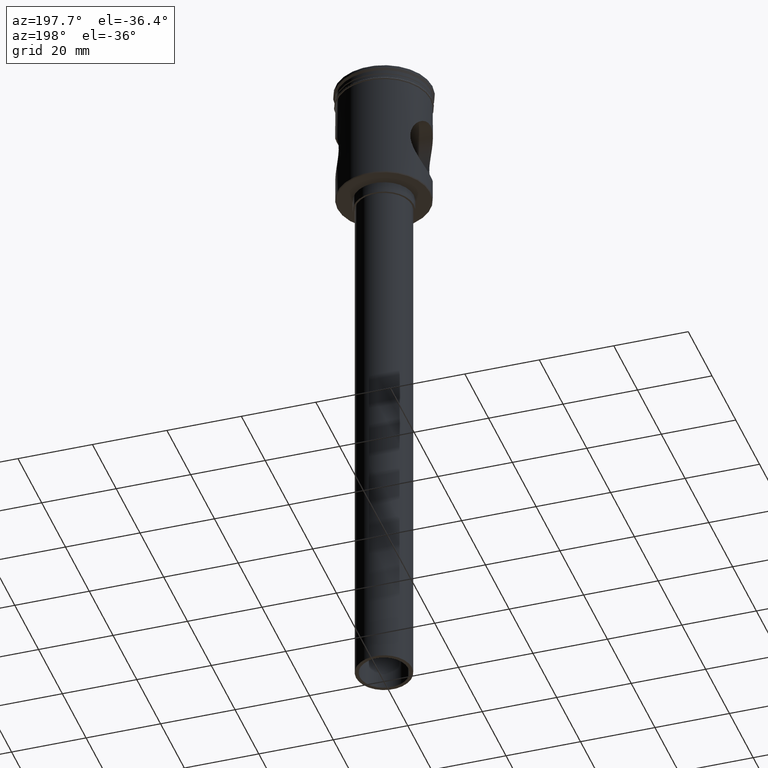
[diagram: clean part render]
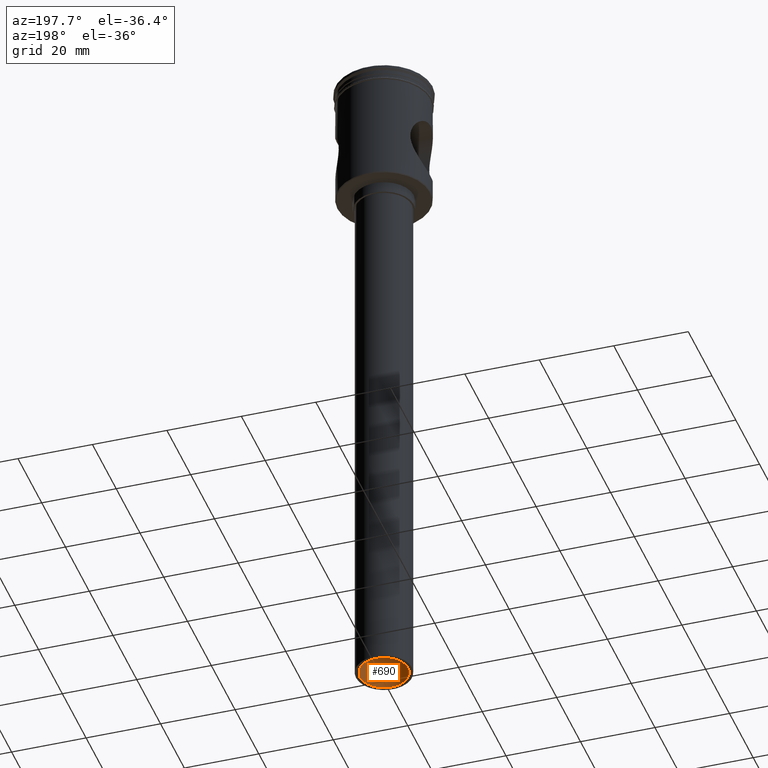
[diagram: same view with one face highlighted and labeled with its STEP entity id]
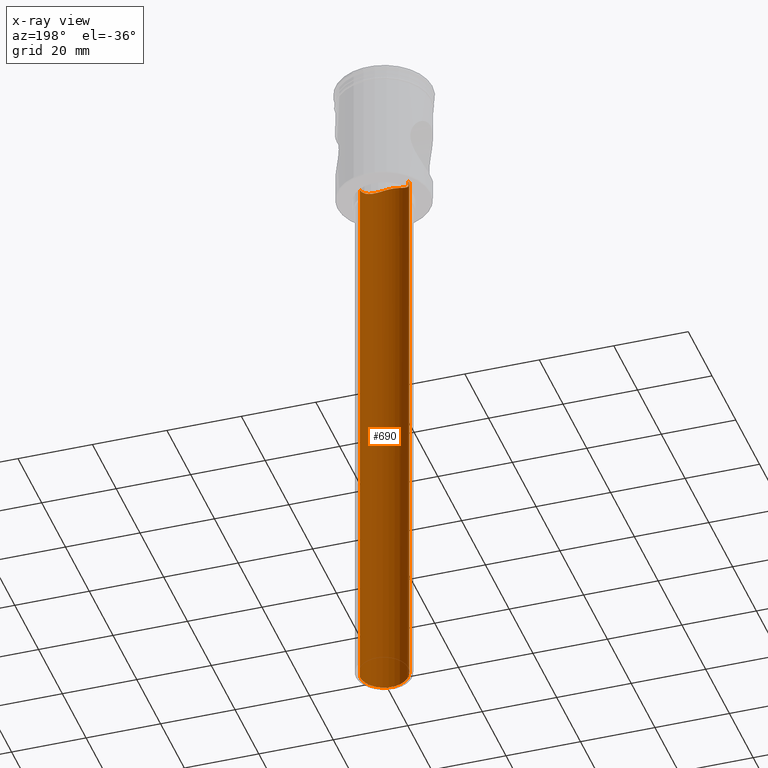
[diagram: x-ray of the same camera — body ghosted, the highlighted face saturated]
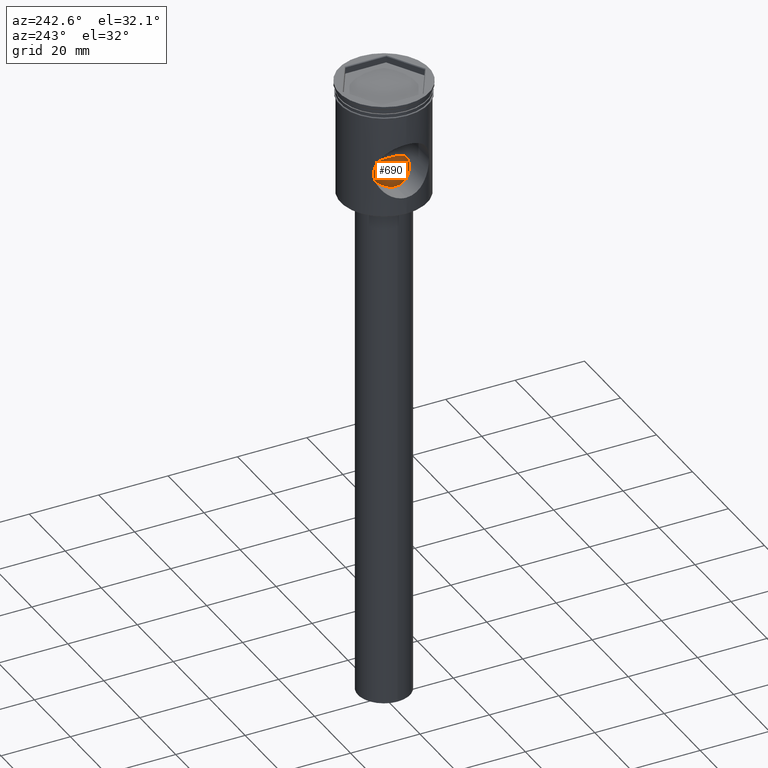
[diagram: same view with one face highlighted and labeled with its STEP entity id]
A machine part, auxiliary view. The second image highlights one B-rep face of the part: STEP entity #690.
The next image is the same camera in x-ray: the body ghosted, the highlighted face saturated — about 0% of this face is hidden behind the body in this view.
A second angle (auxiliary view) of the same face is appended — the face is thin or edge-on in the first view.
In plain terms, the highlighted cylindrical surface (edge-blend (fillet) strip) has radius 6.5 mm, axis along (-0, -0, -1).
Its self-contained STEP definition (entity closure, byte-faithful):
#13 = EDGE_CURVE ( 'NONE', #841, #1405, #1371, .T. ) ;
#32 = DIRECTION ( 'NONE',  ( -1.000000000000000000, 0.000000000000000000, 0.000000000000000000 ) ) ;
#52 = CARTESIAN_POINT ( 'NONE',  ( -6.500000000000000888, 0.000000000000000000, -28.50000000000000355 ) ) ;
#58 = CARTESIAN_POINT ( 'NONE',  ( 6.453317410054072667, -0.8987257197366886885, -28.46192756465547902 ) ) ;
#63 = CARTESIAN_POINT ( 'NONE',  ( -6.045415444438884123, -2.397763870000254816, -28.13506671291826322 ) ) ;
#90 = CARTESIAN_POINT ( 'NONE',  ( 0.2279178920779981743, -6.499906671025888372, -25.16381960342393143 ) ) ;
#131 = AXIS2_PLACEMENT_3D ( 'NONE', #1231, #147, #32 ) ;
#133 = EDGE_CURVE ( 'NONE', #340, #1405, #1203, .T. ) ;
#147 = DIRECTION ( 'NONE',  ( -0.000000000000000000, -0.000000000000000000, -1.000000000000000000 ) ) ;
#179 = ORIENTED_EDGE ( 'NONE', *, *, #228, .T. ) ;
#187 = ORIENTED_EDGE ( 'NONE', *, *, #1068, .T. ) ;
#224 = CARTESIAN_POINT ( 'NONE',  ( 1.756904762588332947, -6.261655111009210906, -25.48015160804801127 ) ) ;
#228 = EDGE_CURVE ( 'NONE', #1127, #340, #962, .T. ) ;
#269 = CARTESIAN_POINT ( 'NONE',  ( -6.122444628364570818, -2.194197262529900438, -28.19627710528614273 ) ) ;
#272 = DIRECTION ( 'NONE',  ( -0.000000000000000000, -0.000000000000000000, -1.000000000000000000 ) ) ;
#320 = CARTESIAN_POINT ( 'NONE',  ( -5.103730894293438958, -4.046605658040481224, -27.41185527253418996 ) ) ;
#340 = VERTEX_POINT ( 'NONE', #627 ) ;
#342 = CARTESIAN_POINT ( 'NONE',  ( -2.170115222478395722, -6.140890886714586827, -25.63309683516175852 ) ) ;
#348 = CARTESIAN_POINT ( 'NONE',  ( 2.359926253138728391, -6.060024045516307467, -25.72409407202624720 ) ) ;
#361 = AXIS2_PLACEMENT_3D ( 'NONE', #484, #951, #1209 ) ;
#362 = CARTESIAN_POINT ( 'NONE',  ( 6.500000000000000888, 7.960204194457796463E-16, 0.001000000000001000089 ) ) ;
#371 = CARTESIAN_POINT ( 'NONE',  ( 3.786615532826517860, -5.286943772991308244, -26.50592529537262720 ) ) ;
#389 = CARTESIAN_POINT ( 'NONE',  ( 5.107185914474898780, -4.041931180501665111, -27.41443527780073097 ) ) ;
#393 = CARTESIAN_POINT ( 'NONE',  ( -6.314744280824636569, -1.556775652073180582, -28.35017581032061429 ) ) ;
#397 = ORIENTED_EDGE ( 'NONE', *, *, #13, .F. ) ;
#439 = CARTESIAN_POINT ( 'NONE',  ( -1.118613416445524367, -6.406746286385391898, -25.29156067469896385 ) ) ;
#450 = CARTESIAN_POINT ( 'NONE',  ( -5.459419164172166994, -3.533838421339083880, -27.67977549627449463 ) ) ;
#469 = CARTESIAN_POINT ( 'NONE',  ( -4.841012717500147389, -4.356256469841109258, -27.21885929387787684 ) ) ;
#484 = CARTESIAN_POINT ( 'NONE',  ( 0.000000000000000000, 0.000000000000000000, -183.5000000000000000 ) ) ;
#515 = CARTESIAN_POINT ( 'NONE',  ( 5.874374812001469159, -2.790750676093712634, -28.00036436083563629 ) ) ;
#527 = CARTESIAN_POINT ( 'NONE',  ( -6.452300104651071955, -0.9033307322908493697, -28.46110773218289580 ) ) ;
#528 = CARTESIAN_POINT ( 'NONE',  ( -6.500000000000000888, 0.000000000000000000, -28.50000000000000355 ) ) ;
#534 = CARTESIAN_POINT ( 'NONE',  ( 6.500000000000004441, -0.4507598041374321629, -28.50000000000000355 ) ) ;
#539 = CARTESIAN_POINT ( 'NONE',  ( -5.778738657444614013, -2.983484102018041373, -27.92559829598778265 ) ) ;
#560 = CARTESIAN_POINT ( 'NONE',  ( 2.933062102616936340, -5.815472475401217700, -25.99913457830531627 ) ) ;
#589 = CARTESIAN_POINT ( 'NONE',  ( 1.122329589812535167, -6.406091335697207789, -25.29243831317033653 ) ) ;
#597 = CARTESIAN_POINT ( 'NONE',  ( -0.2225631351295215277, -6.500092226150140817, -25.16356098672151020 ) ) ;
#623 = CARTESIAN_POINT ( 'NONE',  ( 3.286837574919811988, -5.622065933885316724, -26.19947603596326857 ) ) ;
#625 = VECTOR ( 'NONE', #272, 1000.000000000000000 ) ;
#627 = CARTESIAN_POINT ( 'NONE',  ( 6.500000000000000888, 7.960204194457796463E-16, -183.5000000000000000 ) ) ;
#632 = CYLINDRICAL_SURFACE ( 'NONE', #131, 6.500000000000000888 ) ;
#647 = CARTESIAN_POINT ( 'NONE',  ( 5.570925321596055468, -3.355586592393692502, -27.76504491683394349 ) ) ;
#656 = CARTESIAN_POINT ( 'NONE',  ( 4.260691249340575304, -4.912960556298993531, -26.81582997972560634 ) ) ;
#689 = CARTESIAN_POINT ( 'NONE',  ( -4.265894660066466670, -4.920824860858906469, -26.81708186829286689 ) ) ;
#690 = ADVANCED_FACE ( 'NONE', ( #891 ), #632, .F. ) ;
#699 = CARTESIAN_POINT ( 'NONE',  ( -3.281965803216359667, -5.624989767360222714, -26.19662395985578840 ) ) ;
#710 = CARTESIAN_POINT ( 'NONE',  ( 0.9003842640458902258, -6.441273751971399619, -25.24463642959608478 ) ) ;
#723 = CARTESIAN_POINT ( 'NONE',  ( -1.759870130860044624, -6.272450313614791106, -25.46771313311987939 ) ) ;
#812 = ORIENTED_EDGE ( 'NONE', *, *, #133, .T. ) ;
#836 = CARTESIAN_POINT ( 'NONE',  ( -0.8997665330375742565, -6.441397308604645211, -25.24446944522125946 ) ) ;
#841 = VERTEX_POINT ( 'NONE', #528 ) ;
#862 = VECTOR ( 'NONE', #1077, 1000.000000000000000 ) ;
#874 = CARTESIAN_POINT ( 'NONE',  ( 5.460048327681611191, -3.532776693708767013, -27.68026075794534790 ) ) ;
#891 = FACE_OUTER_BOUND ( 'NONE', #1037, .T. ) ;
#951 = DIRECTION ( 'NONE',  ( 0.000000000000000000, 0.000000000000000000, -1.000000000000000000 ) ) ;
#962 = LINE ( 'NONE', #362, #862 ) ;
#989 = CARTESIAN_POINT ( 'NONE',  ( -6.500000000000000888, 0.000000000000000000, 0.001000000000001000089 ) ) ;
#998 = CARTESIAN_POINT ( 'NONE',  ( 4.845257006710340875, -4.351692134409510082, -27.22189806687991265 ) ) ;
#1003 = CARTESIAN_POINT ( 'NONE',  ( -5.873565130929282674, -2.792409734417655276, -27.99973087264607585 ) ) ;
#1035 = CARTESIAN_POINT ( 'NONE',  ( 2.161611939864988230, -6.133716075550486480, -25.63690197228879697 ) ) ;
#1037 = EDGE_LOOP ( 'NONE', ( #187, #179, #812, #397 ) ) ;
#1068 = EDGE_CURVE ( 'NONE', #841, #1127, #1546, .T. ) ;
#1077 = DIRECTION ( 'NONE',  ( -0.000000000000000000, -0.000000000000000000, -1.000000000000000000 ) ) ;
#1108 = CARTESIAN_POINT ( 'NONE',  ( 3.947926699380110982, -5.167644156313274451, -26.60920155456273406 ) ) ;
#1127 = VERTEX_POINT ( 'NONE', #1145 ) ;
#1145 = CARTESIAN_POINT ( 'NONE',  ( 6.500000000000000888, -1.382494513617927609E-22, -28.50000000000000711 ) ) ;
#1170 = CARTESIAN_POINT ( 'NONE',  ( -2.928534602587695268, -5.817527485350904470, -25.99687165202796635 ) ) ;
#1187 = CARTESIAN_POINT ( 'NONE',  ( 0.4524990572914348030, -6.488138714140404772, -25.18034597257065954 ) ) ;
#1203 = CIRCLE ( 'NONE', #361, 6.500000000000000888 ) ;
#1209 = DIRECTION ( 'NONE',  ( -1.000000000000000000, 0.000000000000000000, 0.000000000000000000 ) ) ;
#1216 = CARTESIAN_POINT ( 'NONE',  ( 6.500000000000000888, -1.382494513617927609E-22, -28.50000000000000711 ) ) ;
#1231 = CARTESIAN_POINT ( 'NONE',  ( 0.000000000000000000, 0.000000000000000000, 0.001000000000001000089 ) ) ;
#1247 = CARTESIAN_POINT ( 'NONE',  ( 4.412405615134871617, -4.777197050673709811, -26.91939816903312988 ) ) ;
#1257 = CARTESIAN_POINT ( 'NONE',  ( 6.267596112280134690, -1.780520285634006328, -28.31215373482772435 ) ) ;
#1268 = CARTESIAN_POINT ( 'NONE',  ( -6.500000000000000888, 0.000000000000000000, -183.5000000000000000 ) ) ;
#1290 = CARTESIAN_POINT ( 'NONE',  ( -3.950476954517371020, -5.177406807294167912, -26.60626671336047977 ) ) ;
#1313 = CARTESIAN_POINT ( 'NONE',  ( 1.549496979434392907, -6.316382589757155053, -25.41006946658093213 ) ) ;
#1356 = CARTESIAN_POINT ( 'NONE',  ( 5.778229625922491230, -2.984498736465476032, -27.92520075921876455 ) ) ;
#1360 = CARTESIAN_POINT ( 'NONE',  ( -6.257325268433448606, -1.773333115719714304, -28.30400362435442929 ) ) ;
#1371 = LINE ( 'NONE', #989, #625 ) ;
#1405 = VERTEX_POINT ( 'NONE', #1268 ) ;
#1412 = CARTESIAN_POINT ( 'NONE',  ( -0.4497550855590497498, -6.488366471176499672, -25.18003099772318265 ) ) ;
#1475 = CARTESIAN_POINT ( 'NONE',  ( -6.500000000000001776, -0.4573348468601944328, -28.50000000000001066 ) ) ;
#1479 = CARTESIAN_POINT ( 'NONE',  ( 6.132621783209935451, -2.197094703484181899, -28.20375196833109754 ) ) ;
#1498 = CARTESIAN_POINT ( 'NONE',  ( -5.571918240676929202, -3.353911891694667080, -27.76580776398056472 ) ) ;
#1546 = B_SPLINE_CURVE_WITH_KNOTS ( 'NONE', 3,
 ( #52, #1475, #527, #393, #1360, #269, #63, #1003, #539, #1498, #450, #320, #469, #689, #1290, #699, #1170, #342, #723, #439, #836, #1412, #597, #90, #1187, #710, #589, #1313, #224, #1035, #348, #560, #623, #371, #1108, #656, #1247, #998, #389, #874, #647, #1356, #515, #1479, #1257, #58, #534, #1216 ),
 .UNSPECIFIED., .F., .F.,
 ( 4, 2, 2, 2, 2, 2, 2, 2, 2, 2, 2, 2, 2, 2, 2, 2, 2, 2, 2, 2, 2, 2, 2, 4 ),
 ( 0.000000000000000000, 0.001349295505266007123, 0.002023943257899011444, 0.002698591010532015982, 0.003373238763165020086, 0.004047886515798024623, 0.005397182021064039770, 0.006746477526330054049, 0.008095773031596068328, 0.009445068536862083475, 0.01011971628949508845, 0.01079436404212809342, 0.01146901179476110012, 0.01214365954739410509, 0.01281830730002711180, 0.01349295505266011677, 0.01484225055792612671, 0.01551689831055913169, 0.01619154606319213319, 0.01754084156845813966, 0.01821548932109114116, 0.01889013707372414613, 0.02023943257899014567, 0.02158872808425614867 ),
 .UNSPECIFIED. ) ;